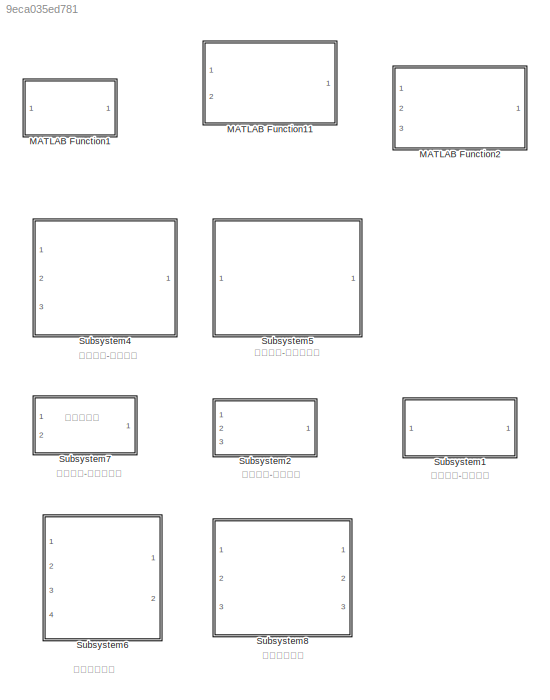
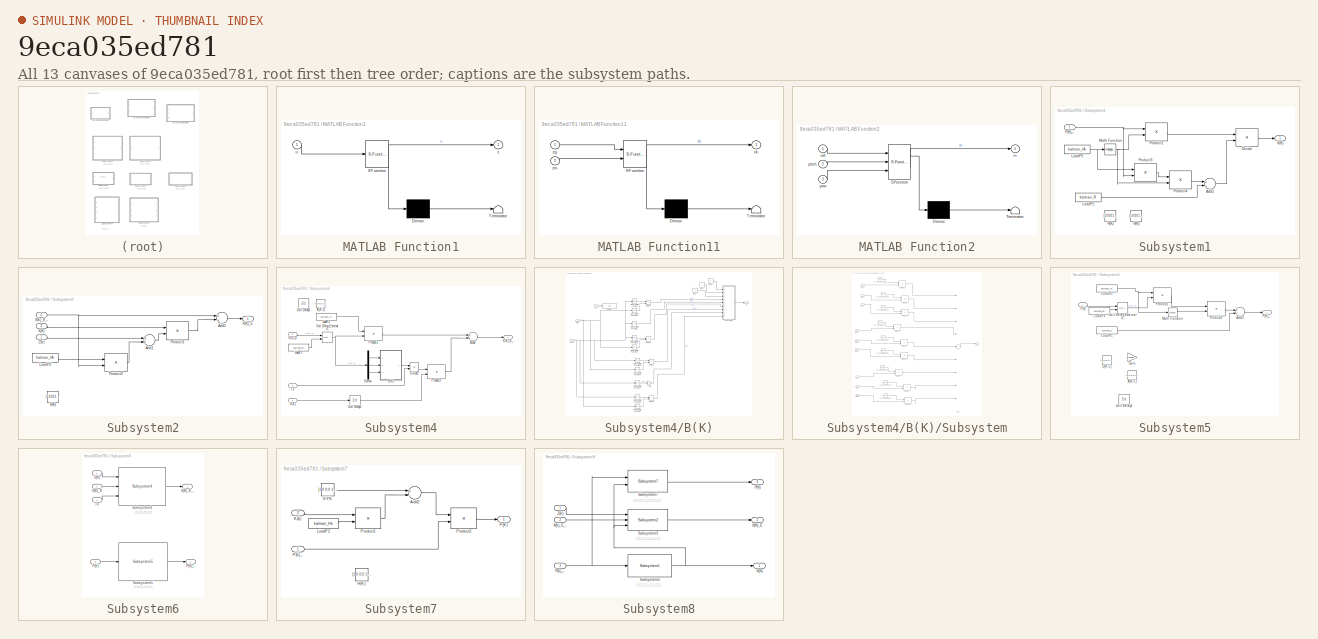
[diagram: thumbnail index - all 13 canvases of the model, root first then tree order]
MODEL slx_9eca035ed781
KIND library
BLOCK [SubSystem] MATLAB Function1
  ErrorFcn = Stateflow.Translate.translate
  PermitHierarchicalResolution = ExplicitOnly
  Ports = [1, 1]
  RequestExecContextInheritance = off
  SFBlockType = MATLAB Function
  TreatAsAtomicUnit = on
BLOCK [Demux] MATLAB Function1/ Demux 
  Outputs = 1
  Ports = [1, 1]
BLOCK [S-Function] MATLAB Function1/ SFunction 
  EnableBusSupport = off
  FunctionName = sf_sfun
  PortCounts = [1 2]
  Ports = [1, 2]
  Tag = Stateflow S-Function Lib_AP_AHRS 41
BLOCK [Terminator] MATLAB Function1/ Terminator 
BLOCK [Inport] MATLAB Function1/u
  IconDisplay = Port number
BLOCK [Outport] MATLAB Function1/z
  IconDisplay = Port number
BLOCK [SubSystem] MATLAB Function11
  ErrorFcn = Stateflow.Translate.translate
  PermitHierarchicalResolution = ExplicitOnly
  Ports = [2, 1]
  RequestExecContextInheritance = off
  SFBlockType = MATLAB Function
  TreatAsAtomicUnit = on
BLOCK [Demux] MATLAB Function11/ Demux 
  Outputs = 1
  Ports = [1, 1]
BLOCK [S-Function] MATLAB Function11/ SFunction 
  EnableBusSupport = off
  FunctionName = sf_sfun
  PortCounts = [2 2]
  Ports = [2, 2]
  Tag = Stateflow S-Function Lib_AP_AHRS 40
BLOCK [Terminator] MATLAB Function11/ Terminator 
BLOCK [Inport] MATLAB Function11/zg
  IconDisplay = Port number
BLOCK [Outport] MATLAB Function11/zk
  IconDisplay = Port number
BLOCK [Inport] MATLAB Function11/zm
  IconDisplay = Port number
  Port = 2
BLOCK [SubSystem] MATLAB Function2
  ErrorFcn = Stateflow.Translate.translate
  PermitHierarchicalResolution = ExplicitOnly
  Ports = [3, 1]
  RequestExecContextInheritance = off
  SFBlockType = MATLAB Function
  TreatAsAtomicUnit = on
BLOCK [Demux] MATLAB Function2/ Demux 
  Outputs = 1
  Ports = [1, 1]
BLOCK [S-Function] MATLAB Function2/ SFunction 
  EnableBusSupport = off
  FunctionName = sf_sfun
  PortCounts = [3 2]
  Ports = [3, 2]
  Tag = Stateflow S-Function Lib_AP_AHRS 44
BLOCK [Terminator] MATLAB Function2/ Terminator 
BLOCK [Outport] MATLAB Function2/m
  IconDisplay = Port number
BLOCK [Inport] MATLAB Function2/pitch
  IconDisplay = Port number
  Port = 2
BLOCK [Inport] MATLAB Function2/roll
  IconDisplay = Port number
BLOCK [Inport] MATLAB Function2/yaw
  IconDisplay = Port number
  Port = 3
BLOCK [SubSystem] Subsystem1
  Ports = [1, 1]
  RequestExecContextInheritance = off
BLOCK [Sum] Subsystem1/Add2
  InputSameDT = off
  OutDataTypeStr = Inherit: Inherit via internal rule
  Ports = [2, 1]
  SaturateOnIntegerOverflow = off
BLOCK [Product] Subsystem1/Divide
  InputSameDT = off
  Inputs = */
  Multiplication = Matrix(*)
  OutDataTypeStr = Inherit: Inherit via internal rule
  Ports = [2, 1]
  RndMeth = Floor
  SaturateOnIntegerOverflow = off
BLOCK [Constant] Subsystem1/H(K)
  Value = [1 0 0;0 1 0;0 0 1]
BLOCK [Outport] Subsystem1/K(K)
  IconDisplay = Port number
BLOCK [Constant] Subsystem1/LoadP1
  SampleTime = -1
  Value = kalman_R
BLOCK [Constant] Subsystem1/LoadP2
  SampleTime = -1
  Value = kalman_Hk
BLOCK [Math] Subsystem1/Math Function
  Operator = transpose
  Ports = [1, 1]
BLOCK [Inport] Subsystem1/P(K)_-
  IconDisplay = Port number
BLOCK [Product] Subsystem1/Product1
  InputSameDT = off
  Multiplication = Matrix(*)
  OutDataTypeStr = Inherit: Inherit via internal rule
  Ports = [2, 1]
  SaturateOnIntegerOverflow = off
BLOCK [Product] Subsystem1/Product3
  InputSameDT = off
  Multiplication = Matrix(*)
  OutDataTypeStr = Inherit: Inherit via internal rule
  Ports = [2, 1]
  SaturateOnIntegerOverflow = off
BLOCK [Product] Subsystem1/Product4
  InputSameDT = off
  Multiplication = Matrix(*)
  OutDataTypeStr = Inherit: Inherit via internal rule
  Ports = [2, 1]
  SaturateOnIntegerOverflow = off
BLOCK [Constant] Subsystem1/R(K)
  Value = [1 0 0;0 1 0;0 0 1]
BLOCK [SubSystem] Subsystem2
  Ports = [3, 1]
  RequestExecContextInheritance = off
BLOCK [Sum] Subsystem2/Add1
  InputSameDT = off
  Inputs = +-
  OutDataTypeStr = Inherit: Inherit via internal rule
  Ports = [2, 1]
  SaturateOnIntegerOverflow = off
BLOCK [Sum] Subsystem2/Add2
  InputSameDT = off
  OutDataTypeStr = Inherit: Inherit via internal rule
  Ports = [2, 1]
  SaturateOnIntegerOverflow = off
BLOCK [Constant] Subsystem2/H(K)
  Value = [1 0 0;0 1 0;0 0 1]
BLOCK [Inport] Subsystem2/K(K)
  IconDisplay = Port number
  Port = 3
BLOCK [Constant] Subsystem2/LoadP2
  SampleTime = -1
  Value = kalman_Hk
BLOCK [Product] Subsystem2/Product1
  InputSameDT = off
  Multiplication = Matrix(*)
  OutDataTypeStr = Inherit: Inherit via internal rule
  Ports = [2, 1]
  SaturateOnIntegerOverflow = off
BLOCK [Product] Subsystem2/Product2
  InputSameDT = off
  Multiplication = Matrix(*)
  OutDataTypeStr = Inherit: Inherit via internal rule
  Ports = [2, 1]
  SaturateOnIntegerOverflow = off
BLOCK [Outport] Subsystem2/X(K)_E
  IconDisplay = Port number
BLOCK [Inport] Subsystem2/X(k)_E_-
  IconDisplay = Port number
  Port = 2
BLOCK [Inport] Subsystem2/Z(k)
  IconDisplay = Port number
BLOCK [SubSystem] Subsystem4
  Ports = [3, 1]
  RequestExecContextInheritance = off
BLOCK [Constant] Subsystem4/A(K-1)
  Value = [1 0 0;0 1 0;0 0 1]
BLOCK [Sum] Subsystem4/Add2
  InputSameDT = off
  OutDataTypeStr = Inherit: Inherit via internal rule
  Ports = [2, 1]
  SaturateOnIntegerOverflow = off
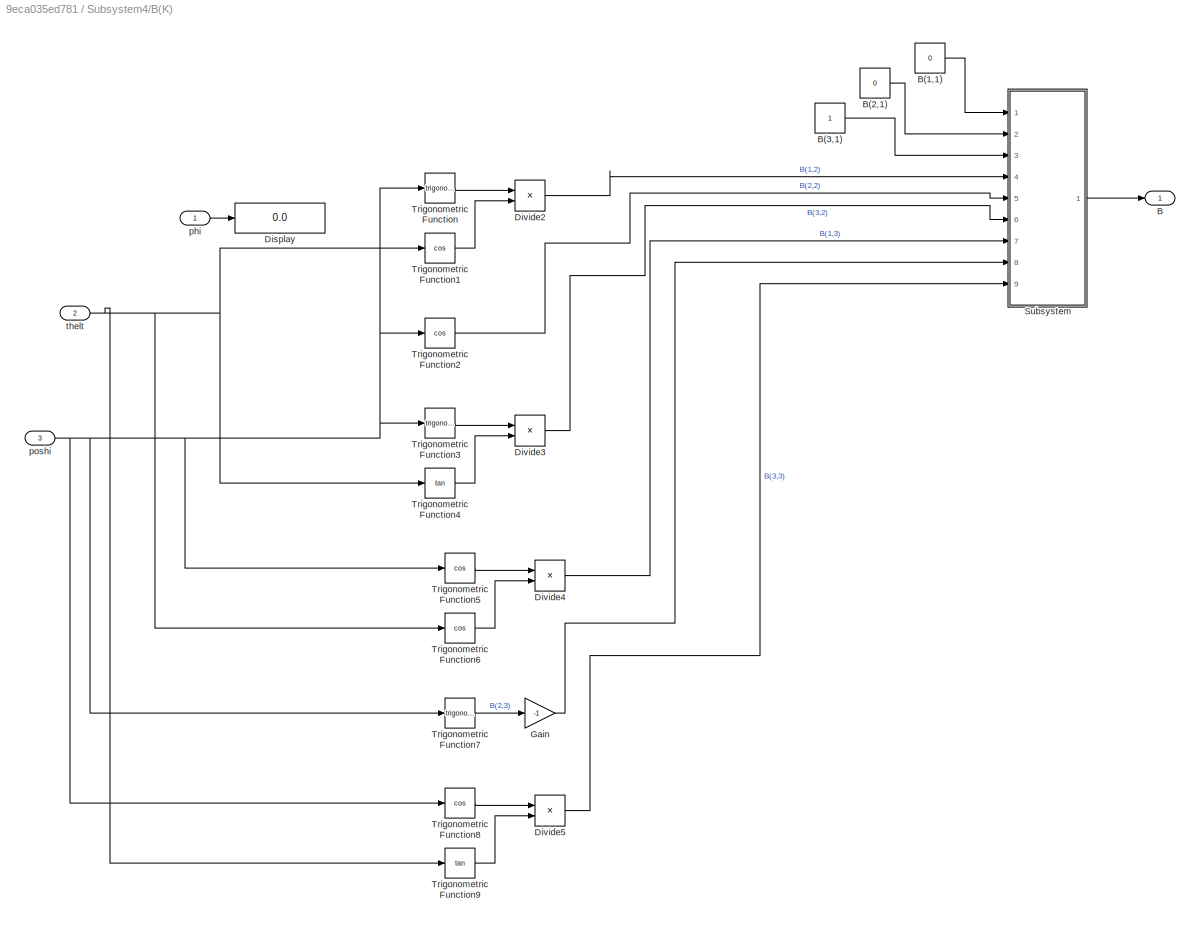
BLOCK [SubSystem] Subsystem4/B(K)
  Ports = [3, 1]
  RequestExecContextInheritance = off
BLOCK [Outport] Subsystem4/B(K)/B
  IconDisplay = Port number
BLOCK [Constant] Subsystem4/B(K)/B(1,1)
  Value = 0
  VectorParams1D = off
BLOCK [Constant] Subsystem4/B(K)/B(2,1)
  Value = 0
  VectorParams1D = off
BLOCK [Constant] Subsystem4/B(K)/B(3,1)
  VectorParams1D = off
BLOCK [Display] Subsystem4/B(K)/Display
  Decimation = 1
  Ports = [1]
BLOCK [Product] Subsystem4/B(K)/Divide2
  InputSameDT = off
  Inputs = */
  OutDataTypeStr = Inherit: Inherit via internal rule
  Ports = [2, 1]
  RndMeth = Floor
  SaturateOnIntegerOverflow = off
BLOCK [Product] Subsystem4/B(K)/Divide3
  InputSameDT = off
  Inputs = **
  OutDataTypeStr = Inherit: Inherit via internal rule
  Ports = [2, 1]
  RndMeth = Floor
  SaturateOnIntegerOverflow = off
BLOCK [Product] Subsystem4/B(K)/Divide4
  InputSameDT = off
  Inputs = */
  OutDataTypeStr = Inherit: Inherit via internal rule
  Ports = [2, 1]
  RndMeth = Floor
  SaturateOnIntegerOverflow = off
BLOCK [Product] Subsystem4/B(K)/Divide5
  InputSameDT = off
  Inputs = **
  OutDataTypeStr = Inherit: Inherit via internal rule
  Ports = [2, 1]
  RndMeth = Floor
  SaturateOnIntegerOverflow = off
BLOCK [Gain] Subsystem4/B(K)/Gain
  Gain = -1
  OutDataTypeStr = Inherit: Inherit via internal rule
  ParamDataTypeStr = Inherit: Inherit via internal rule
  SaturateOnIntegerOverflow = off
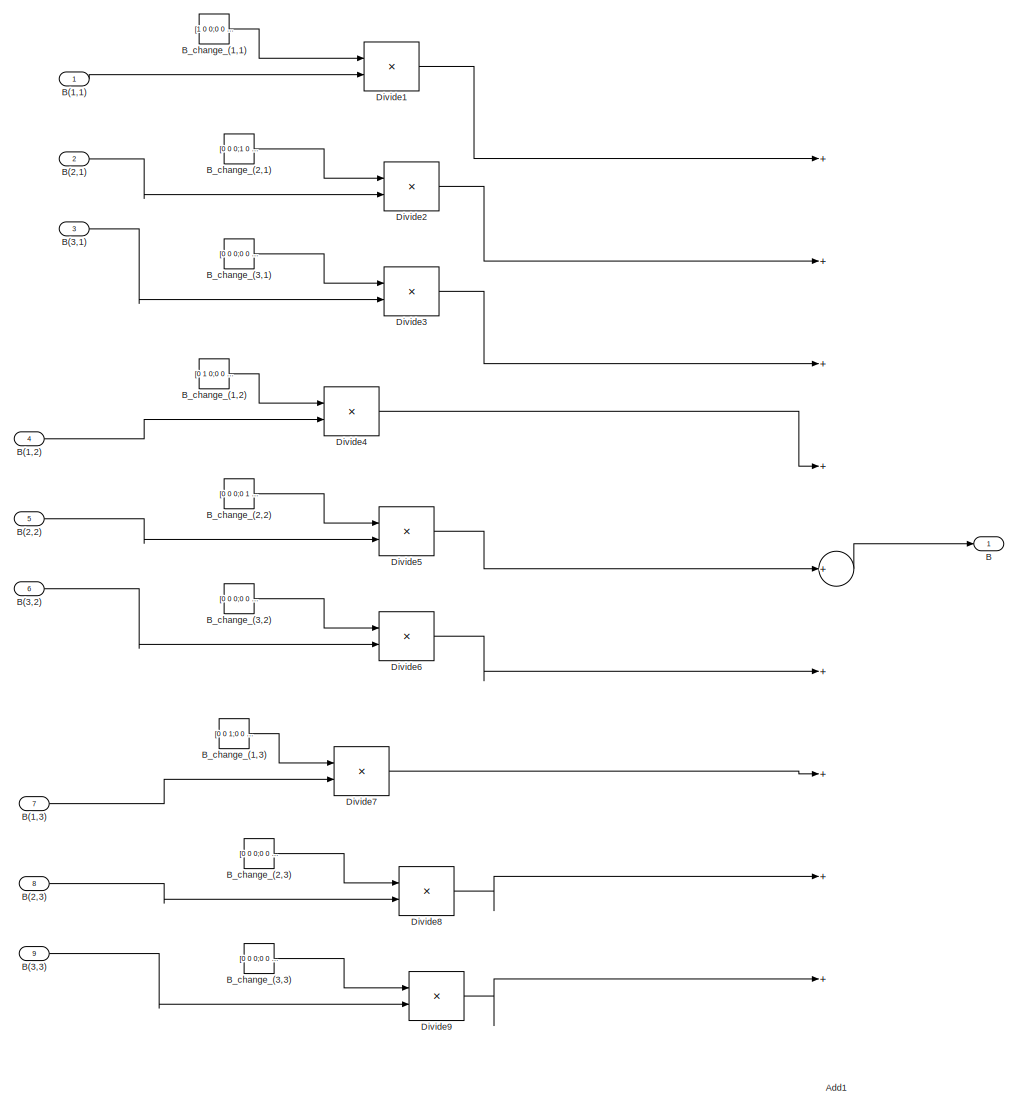
[diagram: Subsystem4/B(K)/Subsystem - part 1/1, most of the canvas]
BLOCK [SubSystem] Subsystem4/B(K)/Subsystem
  Ports = [9, 1]
  RequestExecContextInheritance = off
BLOCK [Sum] Subsystem4/B(K)/Subsystem/Add1
  InputSameDT = off
  Inputs = +++++++++
  OutDataTypeStr = Inherit: Inherit via internal rule
  Ports = [9, 1]
  SaturateOnIntegerOverflow = off
BLOCK [Outport] Subsystem4/B(K)/Subsystem/B
  IconDisplay = Port number
BLOCK [Inport] Subsystem4/B(K)/Subsystem/B(1,1)
  IconDisplay = Port number
BLOCK [Inport] Subsystem4/B(K)/Subsystem/B(1,2)
  IconDisplay = Port number
  Port = 4
BLOCK [Inport] Subsystem4/B(K)/Subsystem/B(1,3)
  IconDisplay = Port number
  Port = 7
BLOCK [Inport] Subsystem4/B(K)/Subsystem/B(2,1)
  IconDisplay = Port number
  Port = 2
BLOCK [Inport] Subsystem4/B(K)/Subsystem/B(2,2)
  IconDisplay = Port number
  Port = 5
BLOCK [Inport] Subsystem4/B(K)/Subsystem/B(2,3)
  IconDisplay = Port number
  Port = 8
BLOCK [Inport] Subsystem4/B(K)/Subsystem/B(3,1)
  IconDisplay = Port number
  Port = 3
BLOCK [Inport] Subsystem4/B(K)/Subsystem/B(3,2)
  IconDisplay = Port number
  Port = 6
BLOCK [Inport] Subsystem4/B(K)/Subsystem/B(3,3)
  IconDisplay = Port number
  Port = 9
BLOCK [Constant] Subsystem4/B(K)/Subsystem/B_change_(1,1)
  Value = [1 0 0;0 0 0;0 0 0]
  VectorParams1D = off
BLOCK [Constant] Subsystem4/B(K)/Subsystem/B_change_(1,2)
  Value = [0 1 0;0 0 0;0 0 0]
  VectorParams1D = off
BLOCK [Constant] Subsystem4/B(K)/Subsystem/B_change_(1,3)
  Value = [0 0 1;0 0 0;0 0 0]
  VectorParams1D = off
BLOCK [Constant] Subsystem4/B(K)/Subsystem/B_change_(2,1)
  Value = [0 0 0;1 0 0;0 0 0]
  VectorParams1D = off
BLOCK [Constant] Subsystem4/B(K)/Subsystem/B_change_(2,2)
  Value = [0 0 0;0 1 0;0 0 0]
  VectorParams1D = off
BLOCK [Constant] Subsystem4/B(K)/Subsystem/B_change_(2,3)
  Value = [0 0 0;0 0 1;0 0 0]
  VectorParams1D = off
BLOCK [Constant] Subsystem4/B(K)/Subsystem/B_change_(3,1)
  Value = [0 0 0;0 0 0;1 0 0]
  VectorParams1D = off
BLOCK [Constant] Subsystem4/B(K)/Subsystem/B_change_(3,2)
  Value = [0 0 0;0 0 0;0 1 0]
  VectorParams1D = off
BLOCK [Constant] Subsystem4/B(K)/Subsystem/B_change_(3,3)
  Value = [0 0 0;0 0 0;0 0 1]
  VectorParams1D = off
BLOCK [Product] Subsystem4/B(K)/Subsystem/Divide1
  InputSameDT = off
  Inputs = **
  OutDataTypeStr = Inherit: Inherit via internal rule
  Ports = [2, 1]
  RndMeth = Floor
  SaturateOnIntegerOverflow = off
BLOCK [Product] Subsystem4/B(K)/Subsystem/Divide2
  InputSameDT = off
  Inputs = **
  OutDataTypeStr = Inherit: Inherit via internal rule
  Ports = [2, 1]
  RndMeth = Floor
  SaturateOnIntegerOverflow = off
BLOCK [Product] Subsystem4/B(K)/Subsystem/Divide3
  InputSameDT = off
  Inputs = **
  OutDataTypeStr = Inherit: Inherit via internal rule
  Ports = [2, 1]
  RndMeth = Floor
  SaturateOnIntegerOverflow = off
BLOCK [Product] Subsystem4/B(K)/Subsystem/Divide4
  InputSameDT = off
  Inputs = **
  OutDataTypeStr = Inherit: Inherit via internal rule
  Ports = [2, 1]
  RndMeth = Floor
  SaturateOnIntegerOverflow = off
BLOCK [Product] Subsystem4/B(K)/Subsystem/Divide5
  InputSameDT = off
  Inputs = **
  OutDataTypeStr = Inherit: Inherit via internal rule
  Ports = [2, 1]
  RndMeth = Floor
  SaturateOnIntegerOverflow = off
BLOCK [Product] Subsystem4/B(K)/Subsystem/Divide6
  InputSameDT = off
  Inputs = **
  OutDataTypeStr = Inherit: Inherit via internal rule
  Ports = [2, 1]
  RndMeth = Floor
  SaturateOnIntegerOverflow = off
BLOCK [Product] Subsystem4/B(K)/Subsystem/Divide7
  InputSameDT = off
  Inputs = **
  OutDataTypeStr = Inherit: Inherit via internal rule
  Ports = [2, 1]
  RndMeth = Floor
  SaturateOnIntegerOverflow = off
BLOCK [Product] Subsystem4/B(K)/Subsystem/Divide8
  InputSameDT = off
  Inputs = **
  OutDataTypeStr = Inherit: Inherit via internal rule
  Ports = [2, 1]
  RndMeth = Floor
  SaturateOnIntegerOverflow = off
BLOCK [Product] Subsystem4/B(K)/Subsystem/Divide9
  InputSameDT = off
  Inputs = **
  OutDataTypeStr = Inherit: Inherit via internal rule
  Ports = [2, 1]
  RndMeth = Floor
  SaturateOnIntegerOverflow = off
BLOCK [Trigonometry] Subsystem4/B(K)/Trigonometric Function
  Ports = [1, 1]
BLOCK [Trigonometry] Subsystem4/B(K)/Trigonometric Function1
  Operator = cos
  Ports = [1, 1]
BLOCK [Trigonometry] Subsystem4/B(K)/Trigonometric Function2
  Operator = cos
  Ports = [1, 1]
BLOCK [Trigonometry] Subsystem4/B(K)/Trigonometric Function3
  Ports = [1, 1]
BLOCK [Trigonometry] Subsystem4/B(K)/Trigonometric Function4
  Operator = tan
  Ports = [1, 1]
BLOCK [Trigonometry] Subsystem4/B(K)/Trigonometric Function5
  Operator = cos
  Ports = [1, 1]
BLOCK [Trigonometry] Subsystem4/B(K)/Trigonometric Function6
  Operator = cos
  Ports = [1, 1]
BLOCK [Trigonometry] Subsystem4/B(K)/Trigonometric Function7
  Ports = [1, 1]
BLOCK [Trigonometry] Subsystem4/B(K)/Trigonometric Function8
  Operator = cos
  Ports = [1, 1]
BLOCK [Trigonometry] Subsystem4/B(K)/Trigonometric Function9
  Operator = tan
  Ports = [1, 1]
BLOCK [Inport] Subsystem4/B(K)/phi
  IconDisplay = Port number
BLOCK [Inport] Subsystem4/B(K)/poshi
  IconDisplay = Port number
  Port = 3
BLOCK [Inport] Subsystem4/B(K)/thelt
  IconDisplay = Port number
  Port = 2
BLOCK [Demux] Subsystem4/Demux
  DisplayOption = bar
  Outputs = 3
  Ports = [1, 3]
BLOCK [Product] Subsystem4/Divide1
  InputSameDT = off
  Inputs = **
  OutDataTypeStr = Inherit: Inherit via internal rule
  Ports = [2, 1]
  RndMeth = Floor
  SaturateOnIntegerOverflow = off
BLOCK [Constant] Subsystem4/LoadP1
  SampleTime = -1
  Value = kalman_x0
BLOCK [Constant] Subsystem4/LoadP2
  SampleTime = -1
  Value = kalman_Ak
BLOCK [Product] Subsystem4/Product1
  InputSameDT = off
  Multiplication = Matrix(*)
  OutDataTypeStr = Inherit: Inherit via internal rule
  Ports = [2, 1]
  SaturateOnIntegerOverflow = off
BLOCK [Product] Subsystem4/Product2
  InputSameDT = off
  Multiplication = Matrix(*)
  OutDataTypeStr = Inherit: Inherit via internal rule
  Ports = [2, 1]
  SaturateOnIntegerOverflow = off
BLOCK [Inport] Subsystem4/Ts
  IconDisplay = Port number
  Port = 3
BLOCK [Inport] Subsystem4/U(K)
  IconDisplay = Port number
BLOCK [Reference] Subsystem4/Unit Delay External IC  REF=simulink/Additional Math
& Discrete/Additional
Discrete/Unit Delay
External IC
  Ports = [2, 1]
  SourceBlock = simulink/Additional Math\n& Discrete/Additional\nDiscrete/Unit Delay\nExternal IC
  SourceType = Unit Delay External Initial Condition
  tsamp = -1
BLOCK [UnitDelay] Subsystem4/Unit Delay1
  InitialCondition = [0;0;0]
  InputProcessing = Elements as channels (sample based)
  SampleTime = -1
BLOCK [UnitDelay] Subsystem4/Unit Delay5
  InitialCondition = [0;0;0]
  InputProcessing = Elements as channels (sample based)
  SampleTime = -1
BLOCK [Inport] Subsystem4/X(K)_E
  IconDisplay = Port number
  Port = 2
BLOCK [Outport] Subsystem4/X(K)_E_-
  IconDisplay = Port number
BLOCK [SubSystem] Subsystem5
  Ports = [1, 1]
  RequestExecContextInheritance = off
BLOCK [Constant] Subsystem5/A(K-1)
  Value = [1 0 0;0 1 0;0 0 1]
BLOCK [Sum] Subsystem5/Add2
  InputSameDT = off
  OutDataTypeStr = Inherit: Inherit via internal rule
  Ports = [2, 1]
  SaturateOnIntegerOverflow = off
BLOCK [Gain] Subsystem5/Gain
  Gain = 0.000000001
  OutDataTypeStr = Inherit: Inherit via internal rule
  ParamDataTypeStr = Inherit: Inherit via internal rule
  SaturateOnIntegerOverflow = off
BLOCK [Constant] Subsystem5/LoadP1
  SampleTime = -1
  Value = kalman_Q
BLOCK [Constant] Subsystem5/LoadP2
  SampleTime = -1
  Value = kalman_Ak
BLOCK [Constant] Subsystem5/LoadP3
  SampleTime = -1
  Value = kalman_p0
BLOCK [Math] Subsystem5/Math Function
  Operator = transpose
  Ports = [1, 1]
BLOCK [Outport] Subsystem5/P(K)_-
  IconDisplay = Port number
BLOCK [Inport] Subsystem5/P(k)
  IconDisplay = Port number
BLOCK [Product] Subsystem5/Product1
  InputSameDT = off
  Multiplication = Matrix(*)
  OutDataTypeStr = Inherit: Inherit via internal rule
  Ports = [2, 1]
  SaturateOnIntegerOverflow = off
BLOCK [Product] Subsystem5/Product2
  InputSameDT = off
  Multiplication = Matrix(*)
  OutDataTypeStr = Inherit: Inherit via internal rule
  Ports = [2, 1]
  SaturateOnIntegerOverflow = off
BLOCK [Constant] Subsystem5/Q(K-1)
  Value = [1 0 0;0 1 0;0 0 1]
BLOCK [Reference] Subsystem5/Unit Delay External IC  REF=simulink/Additional Math
& Discrete/Additional
Discrete/Unit Delay
External IC
  Ports = [2, 1]
  SourceBlock = simulink/Additional Math\n& Discrete/Additional\nDiscrete/Unit Delay\nExternal IC
  SourceType = Unit Delay External Initial Condition
  tsamp = -1
BLOCK [UnitDelay] Subsystem5/Unit Delay5
  InitialCondition = [0 0 0;0 0 0;0 0 0]
  InputProcessing = Elements as channels (sample based)
  SampleTime = -1
BLOCK [SubSystem] Subsystem6
  Ports = [4, 2]
  RequestExecContextInheritance = off
BLOCK [Outport] Subsystem6/P(K)_-
  IconDisplay = Port number
  Port = 2
BLOCK [Inport] Subsystem6/P(k)
  IconDisplay = Port number
  Port = 3
BLOCK [Reference] Subsystem6/Subsystem4  REF=Lib_AP_AHRS/Subsystem4
  Ports = [3, 1]
  SourceBlock = Lib_AP_AHRS/Subsystem4
  SourceType = SubSystem
BLOCK [Reference] Subsystem6/Subsystem5  REF=Lib_AP_AHRS/Subsystem5
  Ports = [1, 1]
  SourceBlock = Lib_AP_AHRS/Subsystem5
  SourceType = SubSystem
BLOCK [Inport] Subsystem6/Ts
  IconDisplay = Port number
  Port = 4
BLOCK [Inport] Subsystem6/U(K)
  IconDisplay = Port number
BLOCK [Inport] Subsystem6/X(K)_E
  IconDisplay = Port number
  Port = 2
BLOCK [Outport] Subsystem6/X(K)_E_-
  IconDisplay = Port number
BLOCK [SubSystem] Subsystem7
  Ports = [2, 1]
  RequestExecContextInheritance = off
BLOCK [Sum] Subsystem7/Add2
  InputSameDT = off
  Inputs = +-
  OutDataTypeStr = Inherit: Inherit via internal rule
  Ports = [2, 1]
  SaturateOnIntegerOverflow = off
BLOCK [Constant] Subsystem7/EYE
  Value = [1 0 0;0 1 0;0 0 1]
BLOCK [Constant] Subsystem7/H(K)
  Value = [1 0 0;0 1 0;0 0 1]
BLOCK [Inport] Subsystem7/K(k)
  IconDisplay = Port number
  Port = 2
BLOCK [Constant] Subsystem7/LoadP2
  SampleTime = -1
  Value = kalman_Hk
BLOCK [Outport] Subsystem7/P(K)
  IconDisplay = Port number
BLOCK [Inport] Subsystem7/P(k)_-
  IconDisplay = Port number
BLOCK [Product] Subsystem7/Product1
  InputSameDT = off
  Multiplication = Matrix(*)
  OutDataTypeStr = Inherit: Inherit via internal rule
  Ports = [2, 1]
  SaturateOnIntegerOverflow = off
BLOCK [Product] Subsystem7/Product2
  InputSameDT = off
  Multiplication = Matrix(*)
  OutDataTypeStr = Inherit: Inherit via internal rule
  Ports = [2, 1]
  SaturateOnIntegerOverflow = off
BLOCK [SubSystem] Subsystem8
  Ports = [3, 3]
  RequestExecContextInheritance = off
BLOCK [Outport] Subsystem8/K(K)
  IconDisplay = Port number
BLOCK [Outport] Subsystem8/P(K)
  IconDisplay = Port number
  Port = 3
BLOCK [Inport] Subsystem8/P(k)_-
  IconDisplay = Port number
  Port = 3
BLOCK [Reference] Subsystem8/Subsystem2  REF=Lib_AP_AHRS/Subsystem1
  Ports = [1, 1]
  SourceBlock = Lib_AP_AHRS/Subsystem1
  SourceType = SubSystem
BLOCK [Reference] Subsystem8/Subsystem3  REF=Lib_AP_AHRS/Subsystem2
  Ports = [3, 1]
  SourceBlock = Lib_AP_AHRS/Subsystem2
  SourceType = SubSystem
BLOCK [Reference] Subsystem8/Subsystem7  REF=Lib_AP_AHRS/Subsystem7
  Ports = [2, 1]
  SourceBlock = Lib_AP_AHRS/Subsystem7
  SourceType = SubSystem
BLOCK [Outport] Subsystem8/X(K)_E
  IconDisplay = Port number
  Port = 2
BLOCK [Inport] Subsystem8/X(k)_E_-
  IconDisplay = Port number
  Port = 2
BLOCK [Inport] Subsystem8/Z(k)
  IconDisplay = Port number
ANNOTATION (root): 协方差更新
ANNOTATION (root): 时间更新-协方差更新
ANNOTATION (root): 时间更新-状态更新
ANNOTATION (root): 时间更新方程
ANNOTATION (root): 测量更新-协方差更新
ANNOTATION (root): 测量更新-增益更新
ANNOTATION (root): 测量更新-状态更新
ANNOTATION (root): 测量更新方程
ANNOTATION Subsystem6: 时间更新-协方差更新
ANNOTATION Subsystem6: 时间更新-状态更新
ANNOTATION Subsystem8: 测量更新-协方差更新
ANNOTATION Subsystem8: 测量更新-增益更新
ANNOTATION Subsystem8: 测量更新-状态更新
LINE Subsystem1/Add2:1 -> Subsystem1/Divide:2
LINE Subsystem1/Divide:1 -> Subsystem1/K(K):1
LINE Subsystem1/LoadP1:1 -> Subsystem1/Add2:2
NET Subsystem1/LoadP2:1 -> Subsystem1/Math Function:1, Subsystem1/Product3:1
NET Subsystem1/Math Function:1 -> Subsystem1/Product1:2, Subsystem1/Product4:2
NET Subsystem1/P(K)_-:1 -> Subsystem1/Product1:1, Subsystem1/Product3:2
LINE Subsystem1/Product1:1 -> Subsystem1/Divide:1
LINE Subsystem1/Product3:1 -> Subsystem1/Product4:1
LINE Subsystem1/Product4:1 -> Subsystem1/Add2:1
LINE Subsystem2/Add1:1 -> Subsystem2/Product1:2
LINE Subsystem2/Add2:1 -> Subsystem2/X(K)_E:1
LINE Subsystem2/K(K):1 -> Subsystem2/Product1:1
LINE Subsystem2/LoadP2:1 -> Subsystem2/Product2:1
LINE Subsystem2/Product1:1 -> Subsystem2/Add2:2
LINE Subsystem2/Product2:1 -> Subsystem2/Add1:2
NET Subsystem2/X(k)_E_-:1 -> Subsystem2/Add2:1, Subsystem2/Product2:2
LINE Subsystem2/Z(k):1 -> Subsystem2/Add1:1
LINE Subsystem4/Add2:1 -> Subsystem4/X(K)_E_-:1
LINE Subsystem4/B(K)/B(1,1):1 -> Subsystem4/B(K)/Subsystem:1
LINE Subsystem4/B(K)/B(2,1):1 -> Subsystem4/B(K)/Subsystem:2
LINE Subsystem4/B(K)/B(3,1):1 -> Subsystem4/B(K)/Subsystem:3
LINE Subsystem4/B(K)/Divide2:1 -> Subsystem4/B(K)/Subsystem:4
LINE Subsystem4/B(K)/Divide3:1 -> Subsystem4/B(K)/Subsystem:6
LINE Subsystem4/B(K)/Divide4:1 -> Subsystem4/B(K)/Subsystem:7
LINE Subsystem4/B(K)/Divide5:1 -> Subsystem4/B(K)/Subsystem:9
LINE Subsystem4/B(K)/Gain:1 -> Subsystem4/B(K)/Subsystem:8
LINE Subsystem4/B(K)/Subsystem/Add1:1 -> Subsystem4/B(K)/Subsystem/B:1
LINE Subsystem4/B(K)/Subsystem/B(1,1):1 -> Subsystem4/B(K)/Subsystem/Divide1:2
LINE Subsystem4/B(K)/Subsystem/B(1,2):1 -> Subsystem4/B(K)/Subsystem/Divide4:2
LINE Subsystem4/B(K)/Subsystem/B(1,3):1 -> Subsystem4/B(K)/Subsystem/Divide7:2
LINE Subsystem4/B(K)/Subsystem/B(2,1):1 -> Subsystem4/B(K)/Subsystem/Divide2:2
LINE Subsystem4/B(K)/Subsystem/B(2,2):1 -> Subsystem4/B(K)/Subsystem/Divide5:2
LINE Subsystem4/B(K)/Subsystem/B(2,3):1 -> Subsystem4/B(K)/Subsystem/Divide8:2
LINE Subsystem4/B(K)/Subsystem/B(3,1):1 -> Subsystem4/B(K)/Subsystem/Divide3:2
LINE Subsystem4/B(K)/Subsystem/B(3,2):1 -> Subsystem4/B(K)/Subsystem/Divide6:2
LINE Subsystem4/B(K)/Subsystem/B(3,3):1 -> Subsystem4/B(K)/Subsystem/Divide9:2
LINE Subsystem4/B(K)/Subsystem/B_change_(1,1):1 -> Subsystem4/B(K)/Subsystem/Divide1:1
LINE Subsystem4/B(K)/Subsystem/B_change_(1,2):1 -> Subsystem4/B(K)/Subsystem/Divide4:1
LINE Subsystem4/B(K)/Subsystem/B_change_(1,3):1 -> Subsystem4/B(K)/Subsystem/Divide7:1
LINE Subsystem4/B(K)/Subsystem/B_change_(2,1):1 -> Subsystem4/B(K)/Subsystem/Divide2:1
LINE Subsystem4/B(K)/Subsystem/B_change_(2,2):1 -> Subsystem4/B(K)/Subsystem/Divide5:1
LINE Subsystem4/B(K)/Subsystem/B_change_(2,3):1 -> Subsystem4/B(K)/Subsystem/Divide8:1
LINE Subsystem4/B(K)/Subsystem/B_change_(3,1):1 -> Subsystem4/B(K)/Subsystem/Divide3:1
LINE Subsystem4/B(K)/Subsystem/B_change_(3,2):1 -> Subsystem4/B(K)/Subsystem/Divide6:1
LINE Subsystem4/B(K)/Subsystem/B_change_(3,3):1 -> Subsystem4/B(K)/Subsystem/Divide9:1
LINE Subsystem4/B(K)/Subsystem/Divide1:1 -> Subsystem4/B(K)/Subsystem/Add1:1
LINE Subsystem4/B(K)/Subsystem/Divide2:1 -> Subsystem4/B(K)/Subsystem/Add1:2
LINE Subsystem4/B(K)/Subsystem/Divide3:1 -> Subsystem4/B(K)/Subsystem/Add1:3
LINE Subsystem4/B(K)/Subsystem/Divide4:1 -> Subsystem4/B(K)/Subsystem/Add1:4
LINE Subsystem4/B(K)/Subsystem/Divide5:1 -> Subsystem4/B(K)/Subsystem/Add1:5
LINE Subsystem4/B(K)/Subsystem/Divide6:1 -> Subsystem4/B(K)/Subsystem/Add1:6
LINE Subsystem4/B(K)/Subsystem/Divide7:1 -> Subsystem4/B(K)/Subsystem/Add1:7
LINE Subsystem4/B(K)/Subsystem/Divide8:1 -> Subsystem4/B(K)/Subsystem/Add1:8
LINE Subsystem4/B(K)/Subsystem/Divide9:1 -> Subsystem4/B(K)/Subsystem/Add1:9
LINE Subsystem4/B(K)/Subsystem:1 -> Subsystem4/B(K)/B:1
LINE Subsystem4/B(K)/Trigonometric Function1:1 -> Subsystem4/B(K)/Divide2:2
LINE Subsystem4/B(K)/Trigonometric Function2:1 -> Subsystem4/B(K)/Subsystem:5
LINE Subsystem4/B(K)/Trigonometric Function3:1 -> Subsystem4/B(K)/Divide3:1
LINE Subsystem4/B(K)/Trigonometric Function4:1 -> Subsystem4/B(K)/Divide3:2
LINE Subsystem4/B(K)/Trigonometric Function5:1 -> Subsystem4/B(K)/Divide4:1
LINE Subsystem4/B(K)/Trigonometric Function6:1 -> Subsystem4/B(K)/Divide4:2
LINE Subsystem4/B(K)/Trigonometric Function7:1 -> Subsystem4/B(K)/Gain:1
LINE Subsystem4/B(K)/Trigonometric Function8:1 -> Subsystem4/B(K)/Divide5:1
LINE Subsystem4/B(K)/Trigonometric Function9:1 -> Subsystem4/B(K)/Divide5:2
LINE Subsystem4/B(K)/Trigonometric Function:1 -> Subsystem4/B(K)/Divide2:1
LINE Subsystem4/B(K)/phi:1 -> Subsystem4/B(K)/Display:1
NET Subsystem4/B(K)/poshi:1 -> Subsystem4/B(K)/Trigonometric Function2:1, Subsystem4/B(K)/Trigonometric Function3:1, Subsystem4/B(K)/Trigonometric Function5:1, Subsystem4/B(K)/Trigonometric Function7:1, Subsystem4/B(K)/Trigonometric Function8:1, Subsystem4/B(K)/Trigonometric Function:1
NET Subsystem4/B(K)/thelt:1 -> Subsystem4/B(K)/Trigonometric Function1:1, Subsystem4/B(K)/Trigonometric Function4:1, Subsystem4/B(K)/Trigonometric Function6:1, Subsystem4/B(K)/Trigonometric Function9:1
LINE Subsystem4/B(K):1 -> Subsystem4/Divide1:1
LINE Subsystem4/Demux:1 -> Subsystem4/B(K):1
LINE Subsystem4/Demux:2 -> Subsystem4/B(K):2
LINE Subsystem4/Demux:3 -> Subsystem4/B(K):3
LINE Subsystem4/Divide1:1 -> Subsystem4/Product2:1
LINE Subsystem4/LoadP1:1 -> Subsystem4/Unit Delay External IC:2
LINE Subsystem4/LoadP2:1 -> Subsystem4/Product1:1
LINE Subsystem4/Product1:1 -> Subsystem4/Add2:1
LINE Subsystem4/Product2:1 -> Subsystem4/Add2:2
LINE Subsystem4/Ts:1 -> Subsystem4/Divide1:2
LINE Subsystem4/U(K):1 -> Subsystem4/Unit Delay1:1
NET Subsystem4/Unit Delay External IC:1 -> Subsystem4/Demux:1, Subsystem4/Product1:2
LINE Subsystem4/Unit Delay1:1 -> Subsystem4/Product2:2
LINE Subsystem4/X(K)_E:1 -> Subsystem4/Unit Delay External IC:1
LINE Subsystem5/Add2:1 -> Subsystem5/P(K)_-:1
LINE Subsystem5/LoadP1:1 -> Subsystem5/Add2:2
NET Subsystem5/LoadP2:1 -> Subsystem5/Math Function:1, Subsystem5/Product1:1
LINE Subsystem5/LoadP3:1 -> Subsystem5/Unit Delay External IC:2
LINE Subsystem5/Math Function:1 -> Subsystem5/Product2:2
LINE Subsystem5/P(k):1 -> Subsystem5/Unit Delay External IC:1
LINE Subsystem5/Product1:1 -> Subsystem5/Product2:1
LINE Subsystem5/Product2:1 -> Subsystem5/Add2:1
LINE Subsystem5/Unit Delay External IC:1 -> Subsystem5/Product1:2
LINE Subsystem6/P(k):1 -> Subsystem6/Subsystem5:1
LINE Subsystem6/Subsystem4:1 -> Subsystem6/X(K)_E_-:1
LINE Subsystem6/Subsystem5:1 -> Subsystem6/P(K)_-:1
LINE Subsystem6/Ts:1 -> Subsystem6/Subsystem4:3
LINE Subsystem6/U(K):1 -> Subsystem6/Subsystem4:1
LINE Subsystem6/X(K)_E:1 -> Subsystem6/Subsystem4:2
LINE Subsystem7/Add2:1 -> Subsystem7/Product2:1
LINE Subsystem7/EYE:1 -> Subsystem7/Add2:1
LINE Subsystem7/K(k):1 -> Subsystem7/Product1:1
LINE Subsystem7/LoadP2:1 -> Subsystem7/Product1:2
LINE Subsystem7/P(k)_-:1 -> Subsystem7/Product2:2
LINE Subsystem7/Product1:1 -> Subsystem7/Add2:2
LINE Subsystem7/Product2:1 -> Subsystem7/P(K):1
NET Subsystem8/P(k)_-:1 -> Subsystem8/Subsystem2:1, Subsystem8/Subsystem7:1
NET Subsystem8/Subsystem2:1 -> Subsystem8/K(K):1, Subsystem8/Subsystem3:3, Subsystem8/Subsystem7:2
LINE Subsystem8/Subsystem3:1 -> Subsystem8/X(K)_E:1
LINE Subsystem8/Subsystem7:1 -> Subsystem8/P(K):1
LINE Subsystem8/X(k)_E_-:1 -> Subsystem8/Subsystem3:2
LINE Subsystem8/Z(k):1 -> Subsystem8/Subsystem3:1
note: NET lines group one-source signal fan-out (src -> all destinations, sorted); 1:1 wires keep LINE
CHART MATLAB Function11 states=1 transitions=1
  STATE_LABEL 'eML_blk_kernel()'
  STATE_LABEL 'SCRIPT:\nfunction zk= monitor(zg,zm)\n%#codegen\n%% 根据重力加速度求roll和pitch\n%pitch 和roll 的计算应该加上0判断的。\npitch=atan(-zg(1)/sqrt(zg(2)*zg(2)+zg(3)*zg(3)));\nroll=atan(zg(2)/zg(3));\ncr=cos(roll);  sr=sin(roll);\ncp=cos(pitch); sp=sin(pitch);\n\n%%根据磁罗盘求yaw，这个自己推到和世科给的结论不一样，要回头重新推到。\n%% 橙子推到  检验通过\n% yaw=atan((zm(3)*sr-zm(2)*cr)/(zm(1)*cp+zm(2)*sp*sr+zm(3)*sp*cr));\n%% 世科推到 检验通过\nyaw=atan((-zm(2)*cp+zm(1)*sp*sr)/(zm(1)...<+203ch>'
CHART MATLAB Function1 states=1 transitions=1
  STATE_LABEL 'eML_blk_kernel()'
  STATE_LABEL 'SCRIPT:\nfunction z=rpy_to_ypr(u)\nz=[u(3);u(2);u(1)];\n\n\n\n\n'
CHART MATLAB Function2 states=1 transitions=1
  STATE_LABEL 'eML_blk_kernel()'
  STATE_LABEL 'SCRIPT:\nfunction m= to_rotation_matrix(roll,pitch,yaw)\n%#codegen\n% m=ones(3,3);\ncr=cos(roll);  sr=sin(roll);\ncp=cos(pitch); sp=sin(pitch);\ncy=cos(yaw);   sy=sin(yaw);\n% syms cr sr cp sp cy sy\n% RZ:Rotate Z axis\n% RY:Rotate Y axis\n% RX:Rotate X axis\n% syms  RZ RY RX\n%from earth to body\n% RZ:Rotate Z axis\n%右旋角度y为正\nRZ = [  cy   sy   0;\n       -sy   cy   0;\n        0    0    1];\n\n% RY:Rotate Y axis\n%上...<+667ch>'
